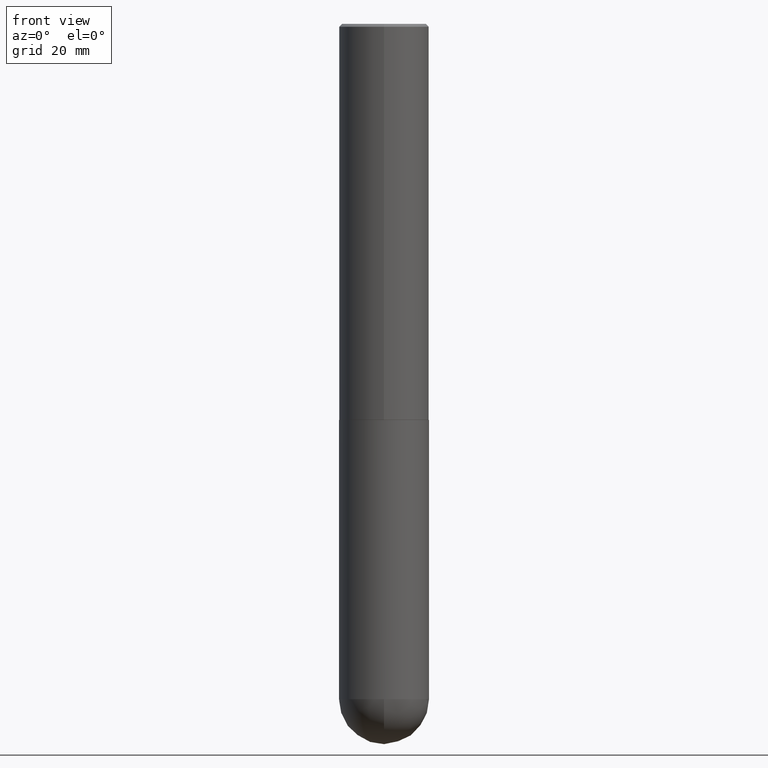
[diagram: clean part render]
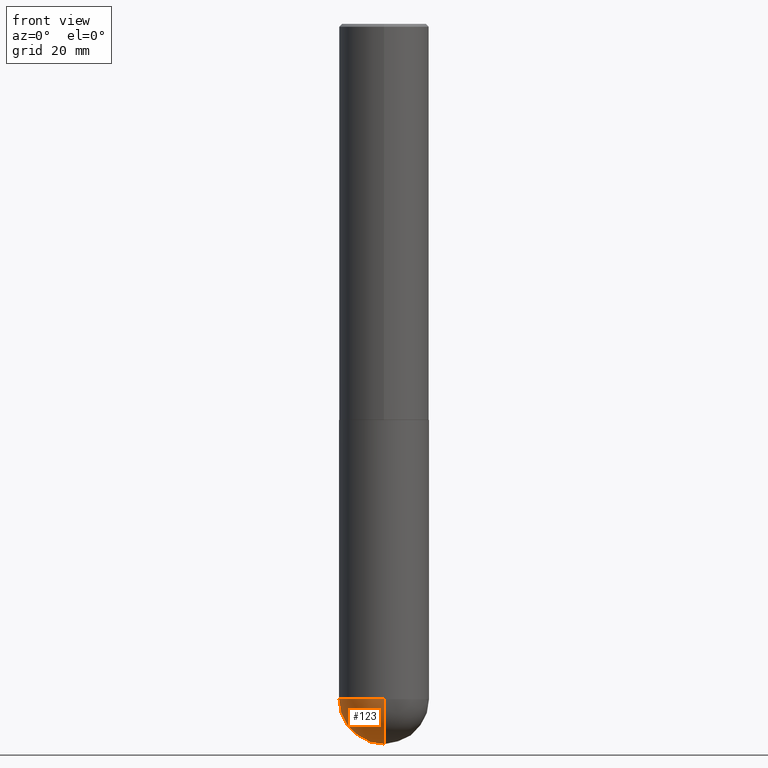
[diagram: same view with one face highlighted and labeled with its STEP entity id]
A machine part, front view. The second image highlights one B-rep face of the part: STEP entity #123.
In plain terms, the highlighted spherical surface has radius 7.9375 mm.
Its self-contained STEP definition (entity closure, byte-faithful):
#33 = VERTEX_POINT ( 'NONE', #52 ) ;
#42 = CIRCLE ( 'NONE', #155, 0.3125000000000000000 ) ;
#52 = CARTESIAN_POINT ( 'NONE',  ( -2.220446049250200668E-15, -0.3125000000000168199, -4.687499999999998224 ) ) ;
#54 = SPHERICAL_SURFACE ( 'NONE', #299, 0.3125000000000002776 ) ;
#75 = CARTESIAN_POINT ( 'NONE',  ( 1.113201525107894267E-28, -1.684050114396729706E-14, -4.687500000000000000 ) ) ;
#76 = CARTESIAN_POINT ( 'NONE',  ( -0.3125000000000000000, -1.076350017957263681E-14, -4.687500000000000000 ) ) ;
#81 = FACE_OUTER_BOUND ( 'NONE', #226, .T. ) ;
#83 = VERTEX_POINT ( 'NONE', #282 ) ;
#91 = ORIENTED_EDGE ( 'NONE', *, *, #280, .F. ) ;
#95 = DIRECTION ( 'NONE',  ( 6.982962677686265922E-15, 1.000000000000000000, -3.496765431890253764E-15 ) ) ;
#104 = ORIENTED_EDGE ( 'NONE', *, *, #338, .T. ) ;
#109 = DIRECTION ( 'NONE',  ( 6.982962677686265922E-15, 1.000000000000000000, 0.000000000000000000 ) ) ;
#115 = VERTEX_POINT ( 'NONE', #76 ) ;
#120 = ORIENTED_EDGE ( 'NONE', *, *, #131, .F. ) ;
#123 = ADVANCED_FACE ( 'NONE', ( #81 ), #54, .T. ) ;
#131 = EDGE_CURVE ( 'NONE', #115, #33, #221, .T. ) ;
#155 = AXIS2_PLACEMENT_3D ( 'NONE', #290, #281, #327 ) ;
#176 = VERTEX_POINT ( 'NONE', #301 ) ;
#182 = CIRCLE ( 'NONE', #239, 0.3125000000000002776 ) ;
#195 = DIRECTION ( 'NONE',  ( -2.445468806185136597E-29, 3.491481338843145583E-15, 1.000000000000000000 ) ) ;
#197 = CIRCLE ( 'NONE', #268, 0.3125000000000002776 ) ;
#216 = CARTESIAN_POINT ( 'NONE',  ( 1.146313502899282780E-28, -1.636631877582724203E-14, -4.687500000000000000 ) ) ;
#221 = CIRCLE ( 'NONE', #369, 0.3125000000000000000 ) ;
#222 = DIRECTION ( 'NONE',  ( -1.000000000000000000, 7.105427357601001070E-15, -4.926315508542082329E-29 ) ) ;
#226 = EDGE_LOOP ( 'NONE', ( #257, #104, #120, #91 ) ) ;
#239 = AXIS2_PLACEMENT_3D ( 'NONE', #75, #222, #320 ) ;
#257 = ORIENTED_EDGE ( 'NONE', *, *, #408, .F. ) ;
#264 = DIRECTION ( 'NONE',  ( -1.000000000000000000, 6.982962677686265922E-15, -4.883557194083112901E-29 ) ) ;
#268 = AXIS2_PLACEMENT_3D ( 'NONE', #402, #354, #109 ) ;
#280 = EDGE_CURVE ( 'NONE', #83, #115, #42, .T. ) ;
#281 = DIRECTION ( 'NONE',  ( -2.445468806185136597E-29, 3.491481338843145583E-15, 1.000000000000000000 ) ) ;
#282 = CARTESIAN_POINT ( 'NONE',  ( 2.182175836777072337E-15, 0.3124999999999835132, -4.687500000000000888 ) ) ;
#290 = CARTESIAN_POINT ( 'NONE',  ( 1.146313502899282780E-28, -1.636631877582724203E-14, -4.687500000000000000 ) ) ;
#299 = AXIS2_PLACEMENT_3D ( 'NONE', #407, #264, #95 ) ;
#301 = CARTESIAN_POINT ( 'NONE',  ( 1.190958622628022629E-28, -1.791245395611910360E-14, -5.000000000000000000 ) ) ;
#320 = DIRECTION ( 'NONE',  ( -7.105427357601000281E-15, -1.000000000000000000, 0.000000000000000000 ) ) ;
#327 = DIRECTION ( 'NONE',  ( 1.000000000000000000, -6.982962677686269077E-15, 0.000000000000000000 ) ) ;
#338 = EDGE_CURVE ( 'NONE', #176, #33, #182, .T. ) ;
#354 = DIRECTION ( 'NONE',  ( 1.000000000000000000, -6.982962677686265922E-15, 4.883557194083112340E-29 ) ) ;
#369 = AXIS2_PLACEMENT_3D ( 'NONE', #216, #195, #389 ) ;
#389 = DIRECTION ( 'NONE',  ( 1.000000000000000000, -6.982962677686269077E-15, 0.000000000000000000 ) ) ;
#402 = CARTESIAN_POINT ( 'NONE',  ( 1.113201525107894267E-28, -1.684050114396729706E-14, -4.687500000000000000 ) ) ;
#407 = CARTESIAN_POINT ( 'NONE',  ( 1.113201525107894267E-28, -1.684050114396729706E-14, -4.687500000000000000 ) ) ;
#408 = EDGE_CURVE ( 'NONE', #176, #83, #197, .T. ) ;